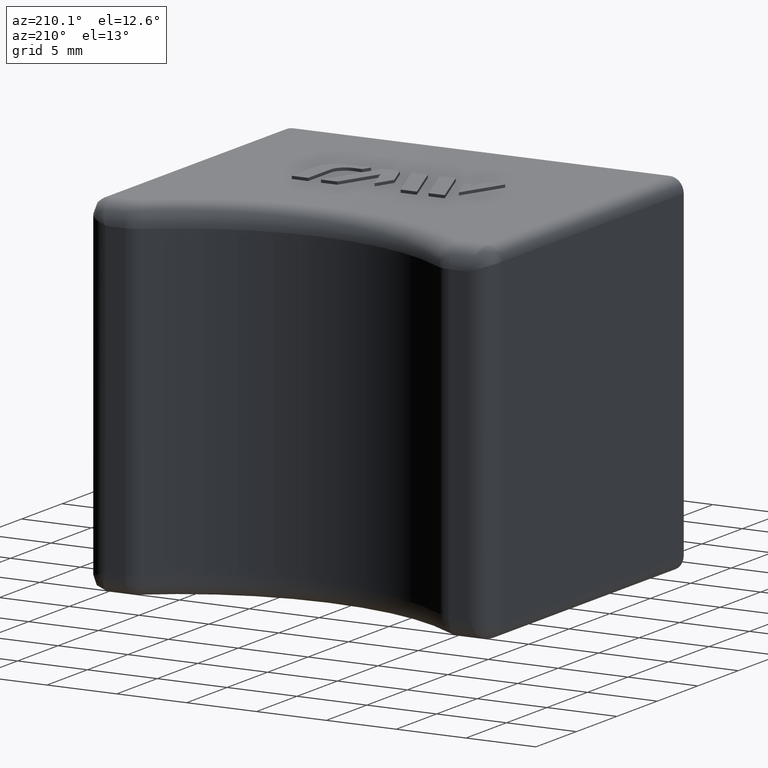
[diagram: clean part render]
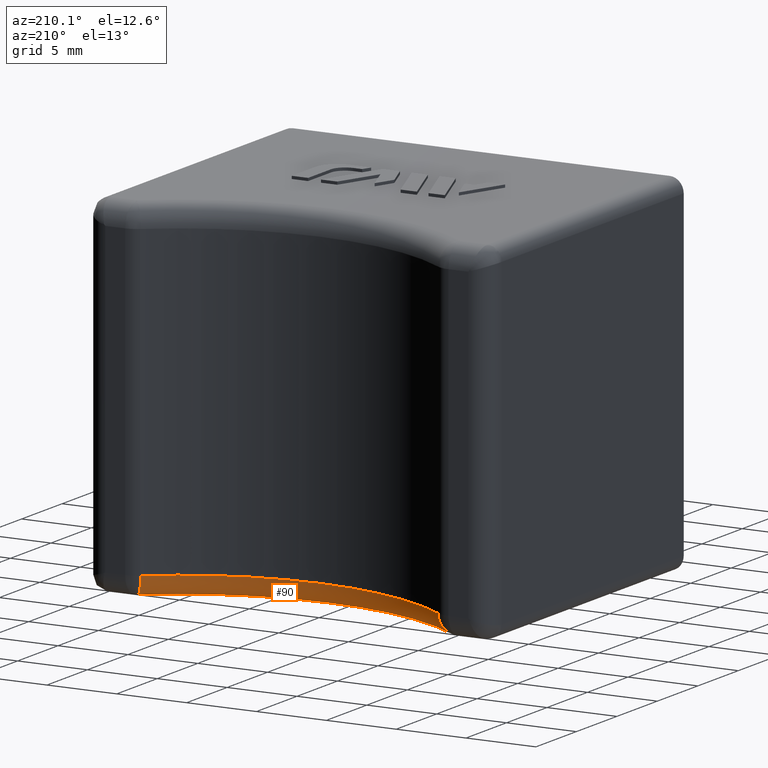
[diagram: same view with one face highlighted and labeled with its STEP entity id]
A machine part, auxiliary view. The second image highlights one B-rep face of the part: STEP entity #90.
In plain terms, the highlighted toroidal blend (fillet) surface has major radius 18.75 mm and minor (blend) radius 1.5 mm.
Its self-contained STEP definition (entity closure, byte-faithful):
#90 = ADVANCED_FACE( '', ( #346 ), #347, .T. );
#346 = FACE_OUTER_BOUND( '', #930, .T. );
#347 = TOROIDAL_SURFACE( '', #931, 18.7500000000000, 1.50000000000000 );
#930 = EDGE_LOOP( '', ( #1981, #1982, #1983, #1984 ) );
#931 = AXIS2_PLACEMENT_3D( '', #1985, #1986, #1987 );
#1981 = ORIENTED_EDGE( '', *, *, #3578, .T. );
#1982 = ORIENTED_EDGE( '', *, *, #3575, .F. );
#1983 = ORIENTED_EDGE( '', *, *, #3579, .F. );
#1984 = ORIENTED_EDGE( '', *, *, #3580, .F. );
#1985 = CARTESIAN_POINT( '', ( 0.000000000000000, 37.2500000000000, -11.0000000000000 ) );
#1986 = DIRECTION( '', ( 0.000000000000000, 0.000000000000000, -1.00000000000000 ) );
#1987 = DIRECTION( '', ( -1.00000000000000, 0.000000000000000, 0.000000000000000 ) );
#3575 = EDGE_CURVE( '', #4267, #4272, #4273, .F. );
#3578 = EDGE_CURVE( '', #4277, #4272, #4278, .F. );
#3579 = EDGE_CURVE( '', #4279, #4267, #4280, .T. );
#3580 = EDGE_CURVE( '', #4277, #4279, #4281, .T. );
#4267 = VERTEX_POINT( '', #5299 );
#4272 = VERTEX_POINT( '', #5307 );
#4273 = CIRCLE( '', #5308, 18.7500000000000 );
#4277 = VERTEX_POINT( '', #5314 );
#4278 = CIRCLE( '', #5315, 1.50000000000000 );
#4279 = VERTEX_POINT( '', #5316 );
#4280 = CIRCLE( '', #5317, 1.50000000000000 );
#4281 = CIRCLE( '', #5318, 17.2500000000000 );
#5299 = CARTESIAN_POINT( '', ( -11.5758369027905, 22.5000000000002, -12.5000000000000 ) );
#5307 = CARTESIAN_POINT( '', ( 11.5758369027905, 22.5000000000000, -12.5000000000000 ) );
#5308 = AXIS2_PLACEMENT_3D( '', #6261, #6262, #6263 );
#5314 = CARTESIAN_POINT( '', ( 10.6497699505670, 23.6800000000000, -11.0000000000000 ) );
#5315 = AXIS2_PLACEMENT_3D( '', #6266, #6267, #6268 );
#5316 = CARTESIAN_POINT( '', ( -10.6497699505670, 23.6800000000000, -11.0000000000000 ) );
#5317 = AXIS2_PLACEMENT_3D( '', #6269, #6270, #6271 );
#5318 = AXIS2_PLACEMENT_3D( '', #6272, #6273, #6274 );
#6261 = CARTESIAN_POINT( '', ( 0.000000000000000, 37.2500000000000, -12.5000000000000 ) );
#6262 = DIRECTION( '', ( 0.000000000000000, 0.000000000000000, -1.00000000000000 ) );
#6263 = DIRECTION( '', ( -1.00000000000000, 0.000000000000000, 0.000000000000000 ) );
#6266 = CARTESIAN_POINT( '', ( 11.5758369027905, 22.5000000000002, -11.0000000000000 ) );
#6267 = DIRECTION( '', ( 0.786666666666505, 0.617377968149018, 0.000000000000000 ) );
#6268 = DIRECTION( '', ( -0.617377968149018, 0.786666666666505, 0.000000000000000 ) );
#6269 = CARTESIAN_POINT( '', ( -11.5758369027902, 22.5000000000000, -11.0000000000000 ) );
#6270 = DIRECTION( '', ( -0.786666666666667, 0.617377968148812, 2.64234241906322E-013 ) );
#6271 = DIRECTION( '', ( -0.617377968148812, -0.786666666666667, 1.46679469629386E-029 ) );
#6272 = CARTESIAN_POINT( '', ( 0.000000000000000, 37.2500000000000, -11.0000000000000 ) );
#6273 = DIRECTION( '', ( 0.000000000000000, 0.000000000000000, -1.00000000000000 ) );
#6274 = DIRECTION( '', ( -1.00000000000000, 0.000000000000000, 0.000000000000000 ) );